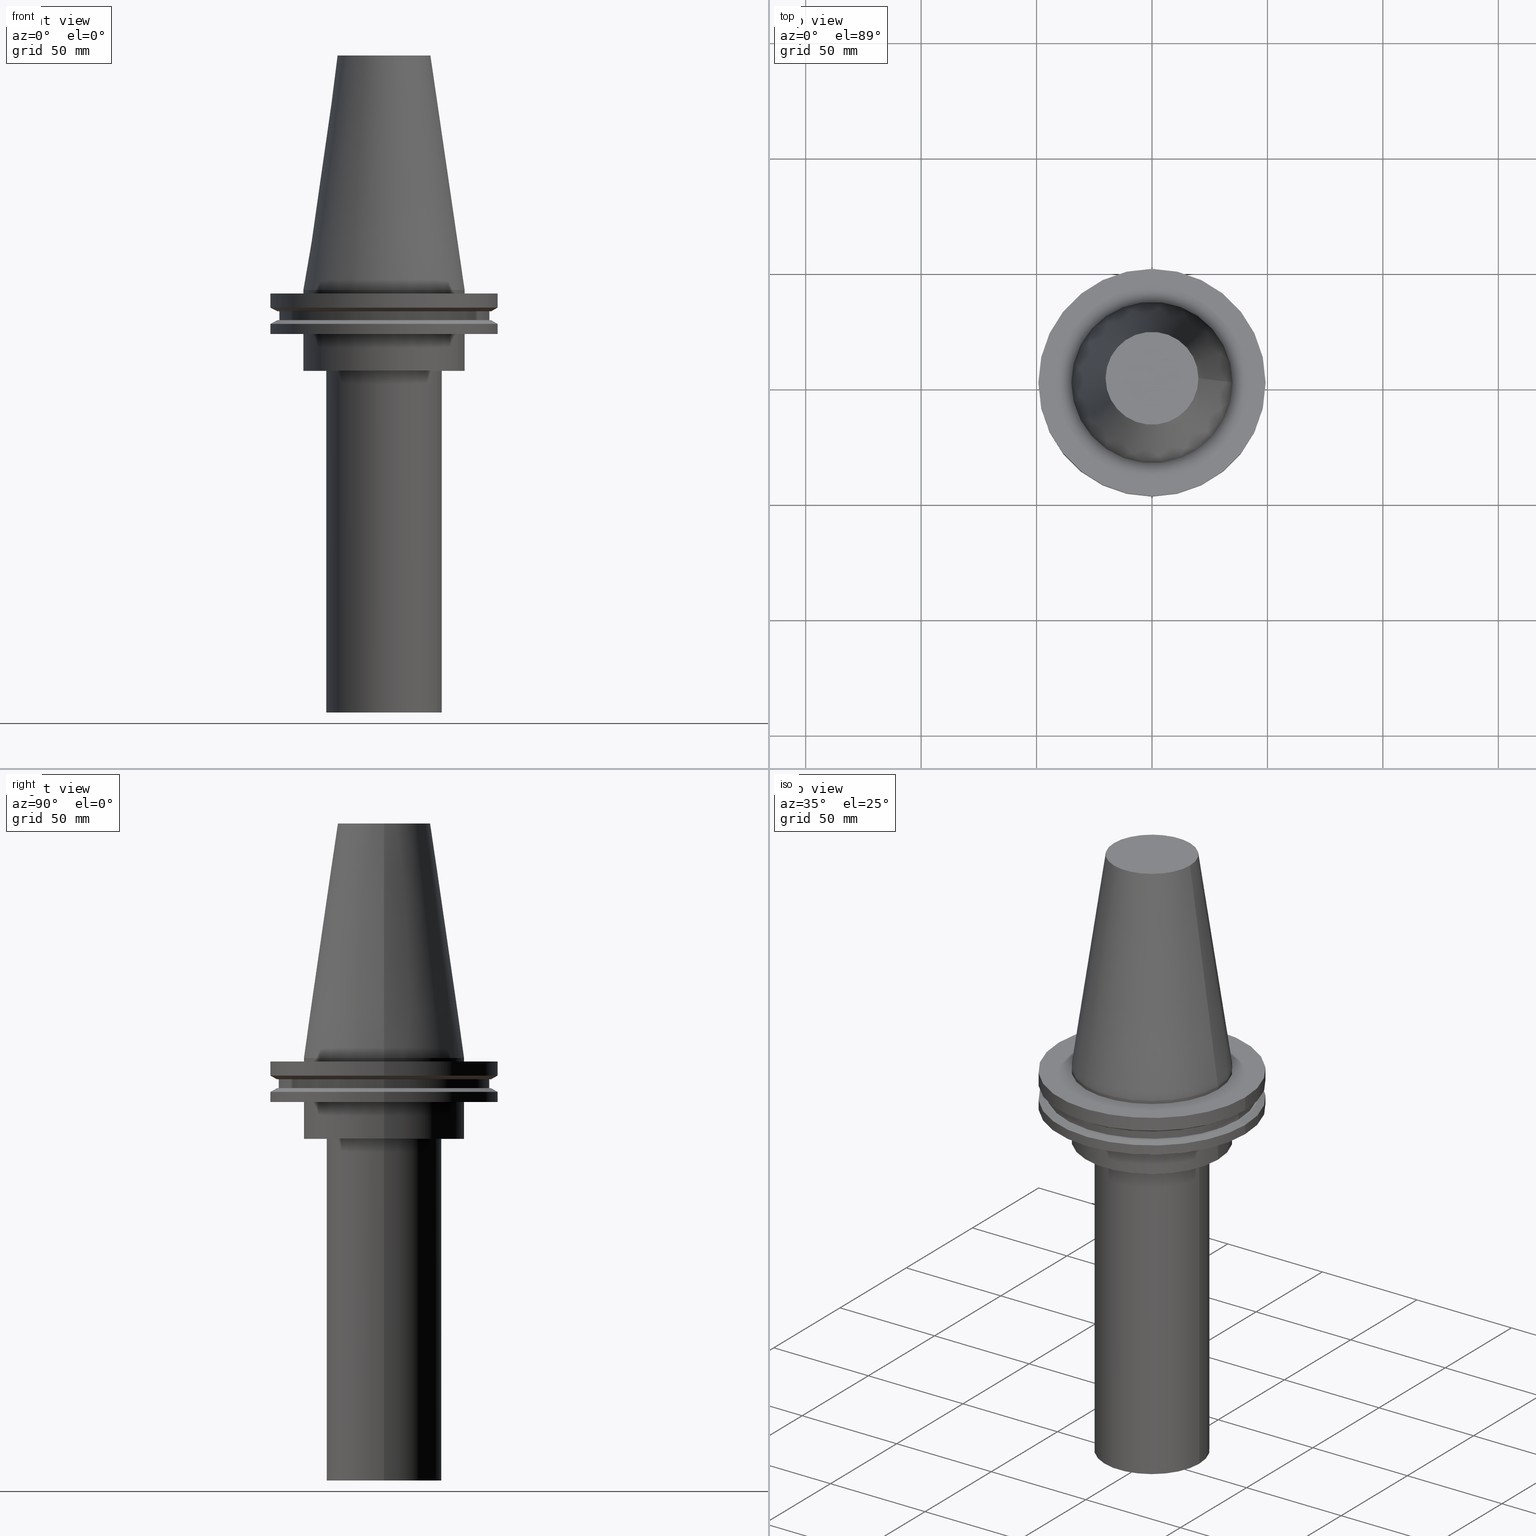
[diagram: canonical four-view strip — front | top / right | iso, engineering-drawing reading convention]
A machine part, canonical four-view strip (front | top / right | iso — engineering-drawing reading convention). The complete STEP part file that produces these views, byte-faithful:
ISO-10303-21;
HEADER;
FILE_DESCRIPTION (( 'STEP AP203' ),
    '1' );
FILE_NAME ('11.368.655.stp',
    '2022-03-09T15:21:19',
    ( '' ),
    ( '' ),
    'SwSTEP 2.0',
    'SolidWorks 2021',
    '' );
FILE_SCHEMA (( 'CONFIG_CONTROL_DESIGN' ));
ENDSEC;

DATA;
#1 = FACE_OUTER_BOUND ( 'NONE', #296, .T. ) ;
#2 = AXIS2_PLACEMENT_3D ( 'NONE', #148, #390, #211 ) ;
#3 = DIRECTION ( 'NONE',  ( 1.000000000000000000, 0.000000000000000000, 0.000000000000000000 ) ) ;
#4 = PRODUCT_DEFINITION ( 'UNKNOWN', '', #6, #273 ) ;
#5 = CARTESIAN_POINT ( 'NONE',  ( 0.000000000000000000, 45.64500000000000313, -13.05499999999999794 ) ) ;
#6 = PRODUCT_DEFINITION_FORMATION_WITH_SPECIFIED_SOURCE ( 'ANY', '', #285, .NOT_KNOWN. ) ;
#7 = FACE_OUTER_BOUND ( 'NONE', #293, .T. ) ;
#8 = ADVANCED_FACE ( 'NONE', ( #258, #80 ), #289, .T. ) ;
#9 = CARTESIAN_POINT ( 'NONE',  ( 0.000000000000000000, 0.000000000000000000, -1.499999999999987566 ) ) ;
#10 = EDGE_LOOP ( 'NONE', ( #106 ) ) ;
#11 = VERTEX_POINT ( 'NONE', #352 ) ;
#12 = ORIENTED_EDGE ( 'NONE', *, *, #157, .T. ) ;
#13 = CIRCLE ( 'NONE', #355, 25.00000000000000000 ) ;
#14 = CC_DESIGN_PERSON_AND_ORGANIZATION_ASSIGNMENT ( #239, #90, ( #6 ) ) ;
#15 = ORIENTED_EDGE ( 'NONE', *, *, #149, .T. ) ;
#16 = ORIENTED_EDGE ( 'NONE', *, *, #276, .F. ) ;
#17 = VERTEX_POINT ( 'NONE', #170 ) ;
#18 = ORIENTED_EDGE ( 'NONE', *, *, #149, .F. ) ;
#19 = AXIS2_PLACEMENT_3D ( 'NONE', #393, #337, #23 ) ;
#20 = CYLINDRICAL_SURFACE ( 'NONE', #31, 49.21499999999999631 ) ;
#21 = DIRECTION ( 'NONE',  ( -0.000000000000000000, -0.000000000000000000, 1.000000000000000000 ) ) ;
#22 = DIRECTION ( 'NONE',  ( 1.000000000000000000, 0.000000000000000000, 0.000000000000000000 ) ) ;
#23 = DIRECTION ( 'NONE',  ( 1.000000000000000000, 0.000000000000000000, 0.000000000000000000 ) ) ;
#24 = CC_DESIGN_PERSON_AND_ORGANIZATION_ASSIGNMENT ( #263, #196, ( #285 ) ) ;
#25 = CALENDAR_DATE ( 2022, 9, 3 ) ;
#26 = DIRECTION ( 'NONE',  ( -0.000000000000000000, -0.000000000000000000, 1.000000000000000000 ) ) ;
#27 = AXIS2_PLACEMENT_3D ( 'NONE', #71, #197, #141 ) ;
#28 = FACE_OUTER_BOUND ( 'NONE', #387, .T. ) ;
#29 = EDGE_CURVE ( 'NONE', #290, #290, #167, .T. ) ;
#30 = PLANE ( 'NONE',  #382 ) ;
#31 = AXIS2_PLACEMENT_3D ( 'NONE', #93, #120, #179 ) ;
#32 = EDGE_LOOP ( 'NONE', ( #16 ) ) ;
#33 = DIRECTION ( 'NONE',  ( -0.000000000000000000, -0.000000000000000000, 1.000000000000000000 ) ) ;
#34 = CARTESIAN_POINT ( 'NONE',  ( 49.21500000000000341, 0.000000000000000000, -7.602389855251287187 ) ) ;
#35 = CARTESIAN_POINT ( 'NONE',  ( 0.000000000000000000, 46.43919780457007818, -9.204999999999998295 ) ) ;
#36 = ORIENTED_EDGE ( 'NONE', *, *, #157, .F. ) ;
#37 = CIRCLE ( 'NONE', #140, 49.21499999999998920 ) ;
#38 = APPROVAL_STATUS ( 'not_yet_approved' ) ;
#39 = CARTESIAN_POINT ( 'NONE',  ( 20.10819343178871321, 0.000000000000000000, 101.5999999999999801 ) ) ;
#40 = EDGE_LOOP ( 'NONE', ( #324 ) ) ;
#41 = LOCAL_TIME ( 9, 21, 19.00000000000000000, #201 ) ;
#42 = VERTEX_POINT ( 'NONE', #236 ) ;
#43 = CARTESIAN_POINT ( 'NONE',  ( 49.21499999999998920, 0.000000000000000000, -14.65761014474876944 ) ) ;
#44 = DIRECTION ( 'NONE',  ( -1.000000000000000000, 0.000000000000000000, 0.000000000000000000 ) ) ;
#45 = VERTEX_POINT ( 'NONE', #43 ) ;
#46 = DIRECTION ( 'NONE',  ( -0.000000000000000000, -0.000000000000000000, 1.000000000000000000 ) ) ;
#47 = MANIFOLD_SOLID_BREP ( 'CKB', #161 ) ;
#48 = EDGE_CURVE ( 'NONE', #340, #340, #177, .T. ) ;
#49 = CC_DESIGN_APPROVAL ( #200, ( #6 ) ) ;
#50 = APPROVAL_STATUS ( 'not_yet_approved' ) ;
#51 = DIRECTION ( 'NONE',  ( -0.000000000000000000, -0.000000000000000000, 1.000000000000000000 ) ) ;
#52 = AXIS2_PLACEMENT_3D ( 'NONE', #35, #347, #376 ) ;
#53 = APPROVAL_ROLE ( '' ) ;
#54 = DIRECTION ( 'NONE',  ( 1.000000000000000000, 0.000000000000000000, 0.000000000000000000 ) ) ;
#55 = APPROVAL_DATE_TIME ( #306, #200 ) ;
#56 = CARTESIAN_POINT ( 'NONE',  ( 0.000000000000000000, 0.000000000000000000, 101.5999999999999943 ) ) ;
#57 = APPROVAL_PERSON_ORGANIZATION ( #155, #223, #53 ) ;
#58 = ADVANCED_FACE ( 'NONE', ( #117, #331 ), #277, .T. ) ;
#59 = FACE_OUTER_BOUND ( 'NONE', #238, .T. ) ;
#60 = DIRECTION ( 'NONE',  ( 1.000000000000000000, 0.000000000000000000, 0.000000000000000000 ) ) ;
#61 = CARTESIAN_POINT ( 'NONE',  ( 0.000000000000000000, 0.000000000000000000, -35.00000000000000000 ) ) ;
#62 = ADVANCED_FACE ( 'NONE', ( #303, #88 ), #20, .T. ) ;
#63 = CONICAL_SURFACE ( 'NONE', #379, 49.21499999999998920, 1.047197551196554333 ) ;
#64 = DIRECTION ( 'NONE',  ( 0.000000000000000000, -0.000000000000000000, 1.000000000000000000 ) ) ;
#65 = CARTESIAN_POINT ( 'NONE',  ( 0.000000000000000000, 20.10819343178871321, 101.5999999999999943 ) ) ;
#66 = AXIS2_PLACEMENT_3D ( 'NONE', #338, #333, #60 ) ;
#67 = DIRECTION ( 'NONE',  ( -0.000000000000000000, -0.000000000000000000, 1.000000000000000000 ) ) ;
#68 = FACE_OUTER_BOUND ( 'NONE', #384, .T. ) ;
#69 = APPROVAL_PERSON_ORGANIZATION ( #204, #200, #85 ) ;
#70 = ORIENTED_EDGE ( 'NONE', *, *, #276, .T. ) ;
#71 = CARTESIAN_POINT ( 'NONE',  ( 0.000000000000000000, 0.000000000000000000, 0.000000000000000000 ) ) ;
#72 = CIRCLE ( 'NONE', #334, 34.92499999999999005 ) ;
#73 =( NAMED_UNIT ( * ) SI_UNIT ( $, .STERADIAN. ) SOLID_ANGLE_UNIT ( ) );
#74 = EDGE_LOOP ( 'NONE', ( #144 ) ) ;
#75 = EDGE_CURVE ( 'NONE', #265, #265, #281, .T. ) ;
#76 = PERSON_AND_ORGANIZATION_ROLE ( 'creator' ) ;
#77 = ORIENTED_EDGE ( 'NONE', *, *, #48, .T. ) ;
#78 =( GEOMETRIC_REPRESENTATION_CONTEXT ( 3 ) GLOBAL_UNCERTAINTY_ASSIGNED_CONTEXT ( ( #342 ) ) GLOBAL_UNIT_ASSIGNED_CONTEXT ( ( #259, #350, #73 ) ) REPRESENTATION_CONTEXT ( 'NONE', 'WORKASPACE' ) );
#79 = COORDINATED_UNIVERSAL_TIME_OFFSET ( 6, 0, .BEHIND. ) ;
#80 = FACE_OUTER_BOUND ( 'NONE', #383, .T. ) ;
#81 = AXIS2_PLACEMENT_3D ( 'NONE', #240, #369, #95 ) ;
#82 = APPROVAL_DATE_TIME ( #226, #113 ) ;
#83 = ORIENTED_EDGE ( 'NONE', *, *, #194, .F. ) ;
#84 = EDGE_LOOP ( 'NONE', ( #18 ) ) ;
#85 = APPROVAL_ROLE ( '' ) ;
#86 = DIRECTION ( 'NONE',  ( -0.000000000000000000, -0.000000000000000000, 1.000000000000000000 ) ) ;
#87 = AXIS2_PLACEMENT_3D ( 'NONE', #362, #305, #391 ) ;
#88 = FACE_OUTER_BOUND ( 'NONE', #40, .T. ) ;
#89 = EDGE_CURVE ( 'NONE', #11, #11, #13, .T. ) ;
#90 = PERSON_AND_ORGANIZATION_ROLE ( 'design_supplier' ) ;
#91 = DIRECTION ( 'NONE',  ( 1.000000000000000000, 0.000000000000000000, 0.000000000000000000 ) ) ;
#92 = CC_DESIGN_SECURITY_CLASSIFICATION ( #367, ( #6 ) ) ;
#93 = CARTESIAN_POINT ( 'NONE',  ( 0.000000000000000000, 0.000000000000000000, 101.5999999999999943 ) ) ;
#94 = AXIS2_PLACEMENT_3D ( 'NONE', #245, #86, #368 ) ;
#95 = DIRECTION ( 'NONE',  ( 1.000000000000000000, 0.000000000000000000, 0.000000000000000000 ) ) ;
#96 = CARTESIAN_POINT ( 'NONE',  ( 0.000000000000000000, 0.000000000000000000, -35.00000000000000000 ) ) ;
#97 = PRODUCT_DEFINITION_SHAPE ( 'NONE', 'NONE',  #4 ) ;
#98 = CC_DESIGN_APPROVAL ( #113, ( #4 ) ) ;
#99 = DIRECTION ( 'NONE',  ( 0.000000000000000000, 0.000000000000000000, -1.000000000000000000 ) ) ;
#100 = CARTESIAN_POINT ( 'NONE',  ( 0.000000000000000000, 0.000000000000000000, -1.499999999999987566 ) ) ;
#101 = ADVANCED_FACE ( 'NONE', ( #300, #246 ), #151, .T. ) ;
#102 = DIRECTION ( 'NONE',  ( -0.000000000000000000, -0.000000000000000000, 1.000000000000000000 ) ) ;
#103 = CARTESIAN_POINT ( 'NONE',  ( 0.000000000000000000, 0.000000000000000000, -13.05499999999999794 ) ) ;
#104 = CALENDAR_DATE ( 2022, 9, 3 ) ;
#105 = ADVANCED_FACE ( 'NONE', ( #119, #181 ), #187, .F. ) ;
#106 = ORIENTED_EDGE ( 'NONE', *, *, #297, .F. ) ;
#107 = AXIS2_PLACEMENT_3D ( 'NONE', #242, #244, #22 ) ;
#108 = CARTESIAN_POINT ( 'NONE',  ( 49.21499999999999631, 0.000000000000000000, -1.499999999999987566 ) ) ;
#109 = ORIENTED_EDGE ( 'NONE', *, *, #218, .T. ) ;
#110 = CARTESIAN_POINT ( 'NONE',  ( 25.00000000000000000, 0.000000000000000000, -183.0000000000000000 ) ) ;
#111 = ORIENTED_EDGE ( 'NONE', *, *, #308, .T. ) ;
#112 = LOCAL_TIME ( 9, 21, 19.00000000000000000, #178 ) ;
#113 = APPROVAL ( #38, 'UNSPECIFIED' ) ;
#114 = EDGE_LOOP ( 'NONE', ( #12 ) ) ;
#115 = AXIS2_PLACEMENT_3D ( 'NONE', #329, #46, #270 ) ;
#116 = MECHANICAL_CONTEXT ( 'NONE', #231, 'mechanical' ) ;
#117 = FACE_OUTER_BOUND ( 'NONE', #133, .T. ) ;
#118 = FACE_BOUND ( 'NONE', #32, .T. ) ;
#119 = FACE_BOUND ( 'NONE', #142, .T. ) ;
#120 = DIRECTION ( 'NONE',  ( -0.000000000000000000, -0.000000000000000000, 1.000000000000000000 ) ) ;
#121 = DATE_TIME_ROLE ( 'creation_date' ) ;
#122 = DIRECTION ( 'NONE',  ( 0.000000000000000000, 0.000000000000000000, -1.000000000000000000 ) ) ;
#123 = EDGE_CURVE ( 'NONE', #298, #298, #227, .T. ) ;
#124 = CALENDAR_DATE ( 2022, 9, 3 ) ;
#125 = DIRECTION ( 'NONE',  ( -1.000000000000000000, 0.000000000000000000, -0.000000000000000000 ) ) ;
#126 = AXIS2_PLACEMENT_3D ( 'NONE', #163, #254, #370 ) ;
#127 = PLANE ( 'NONE',  #136 ) ;
#128 = DIRECTION ( 'NONE',  ( -0.000000000000000000, -0.000000000000000000, 1.000000000000000000 ) ) ;
#129 = CYLINDRICAL_SURFACE ( 'NONE', #294, 34.92499999999999005 ) ;
#130 = DIRECTION ( 'NONE',  ( 1.000000000000000000, 0.000000000000000000, 0.000000000000000000 ) ) ;
#131 = CIRCLE ( 'NONE', #87, 34.92499999999999005 ) ;
#132 = DIRECTION ( 'NONE',  ( -1.000000000000000000, 0.000000000000000000, -0.000000000000000000 ) ) ;
#133 = EDGE_LOOP ( 'NONE', ( #83 ) ) ;
#134 = CC_DESIGN_DATE_AND_TIME_ASSIGNMENT ( #182, #302, ( #367 ) ) ;
#135 = PERSON_AND_ORGANIZATION ( #150, #286 ) ;
#136 = AXIS2_PLACEMENT_3D ( 'NONE', #220, #64, #165 ) ;
#137 = EDGE_LOOP ( 'NONE', ( #205 ) ) ;
#138 = CARTESIAN_POINT ( 'NONE',  ( 34.92499999999999005, 0.000000000000000000, -1.499999999999987566 ) ) ;
#139 = ORIENTED_EDGE ( 'NONE', *, *, #123, .T. ) ;
#140 = AXIS2_PLACEMENT_3D ( 'NONE', #389, #364, #366 ) ;
#141 = DIRECTION ( 'NONE',  ( 1.000000000000000000, 0.000000000000000000, 0.000000000000000000 ) ) ;
#142 = EDGE_LOOP ( 'NONE', ( #217 ) ) ;
#143 = VERTEX_POINT ( 'NONE', #39 ) ;
#144 = ORIENTED_EDGE ( 'NONE', *, *, #354, .F. ) ;
#145 = CARTESIAN_POINT ( 'NONE',  ( 34.92499999999999716, 0.000000000000000000, -19.04999999999999716 ) ) ;
#146 = ORIENTED_EDGE ( 'NONE', *, *, #218, .F. ) ;
#147 = AXIS2_PLACEMENT_3D ( 'NONE', #65, #188, #132 ) ;
#148 = CARTESIAN_POINT ( 'NONE',  ( 0.000000000000000000, 0.000000000000000000, 101.5999999999999943 ) ) ;
#149 = EDGE_CURVE ( 'NONE', #321, #321, #131, .T. ) ;
#150 = PERSON ( 'UNSPECIFIED', 'UNSPECIFIED', 'UNSPECIFIED', ('UNSPECIFIED'), ('UNSPECIFIED'), ('UNSPECIFIED') ) ;
#151 = CYLINDRICAL_SURFACE ( 'NONE', #2, 34.92499999999999716 ) ;
#152 = LOCAL_TIME ( 9, 21, 19.00000000000000000, #206 ) ;
#153 = CALENDAR_DATE ( 2022, 9, 3 ) ;
#154 = CARTESIAN_POINT ( 'NONE',  ( 0.000000000000000000, 0.000000000000000000, -19.04999999999999716 ) ) ;
#155 = PERSON_AND_ORGANIZATION ( #150, #286 ) ;
#156 = PLANE ( 'NONE',  #190 ) ;
#157 = EDGE_CURVE ( 'NONE', #42, #42, #37, .T. ) ;
#158 = DIRECTION ( 'NONE',  ( 0.000000000000000000, -0.000000000000000000, 1.000000000000000000 ) ) ;
#159 = AXIS2_PLACEMENT_3D ( 'NONE', #160, #189, #251 ) ;
#160 = CARTESIAN_POINT ( 'NONE',  ( 0.000000000000000000, 0.000000000000000000, -9.204999999999991189 ) ) ;
#161 = CLOSED_SHELL ( 'NONE', ( #8, #268, #105, #101, #363, #58, #388, #288, #252, #320, #326, #62, #184, #291, #377, #173 ) ) ;
#162 = FACE_OUTER_BOUND ( 'NONE', #267, .T. ) ;
#163 = CARTESIAN_POINT ( 'NONE',  ( 0.000000000000000000, 0.000000000000000000, -9.204999999999991189 ) ) ;
#164 = EDGE_CURVE ( 'NONE', #380, #380, #365, .T. ) ;
#165 = DIRECTION ( 'NONE',  ( 1.000000000000000000, 0.000000000000000000, 0.000000000000000000 ) ) ;
#166 = FACE_BOUND ( 'NONE', #264, .T. ) ;
#167 = CIRCLE ( 'NONE', #313, 49.21500000000000341 ) ;
#168 = CARTESIAN_POINT ( 'NONE',  ( 34.92499999999999716, 0.000000000000000000, -35.00000000000000000 ) ) ;
#169 = ORIENTED_EDGE ( 'NONE', *, *, #123, .F. ) ;
#170 = CARTESIAN_POINT ( 'NONE',  ( 46.43919780457007818, 0.000000000000000000, -9.204999999999991189 ) ) ;
#171 = ORIENTED_EDGE ( 'NONE', *, *, #164, .F. ) ;
#172 = VERTEX_POINT ( 'NONE', #108 ) ;
#173 = ADVANCED_FACE ( 'NONE', ( #59 ), #395, .F. ) ;
#174 = DIRECTION ( 'NONE',  ( 0.000000000000000000, 0.000000000000000000, -1.000000000000000000 ) ) ;
#175 = CONICAL_SURFACE ( 'NONE', #159, 46.43919780457007818, 1.047197551196575205 ) ;
#176 = EDGE_LOOP ( 'NONE', ( #169 ) ) ;
#177 = CIRCLE ( 'NONE', #115, 45.64500000000000313 ) ;
#178 = COORDINATED_UNIVERSAL_TIME_OFFSET ( 6, 0, .BEHIND. ) ;
#179 = DIRECTION ( 'NONE',  ( 1.000000000000000000, 0.000000000000000000, 0.000000000000000000 ) ) ;
#180 = PERSON_AND_ORGANIZATION_ROLE ( 'classification_officer' ) ;
#181 = FACE_OUTER_BOUND ( 'NONE', #74, .T. ) ;
#182 = DATE_AND_TIME ( #25, #152 ) ;
#183 = FACE_OUTER_BOUND ( 'NONE', #322, .T. ) ;
#184 = ADVANCED_FACE ( 'NONE', ( #118, #183 ), #156, .F. ) ;
#185 = CIRCLE ( 'NONE', #235, 49.21499999999999631 ) ;
#186 = DATE_AND_TIME ( #328, #41 ) ;
#187 = PLANE ( 'NONE',  #107 ) ;
#188 = DIRECTION ( 'NONE',  ( 0.000000000000000000, 0.000000000000000000, -1.000000000000000000 ) ) ;
#189 = DIRECTION ( 'NONE',  ( -0.000000000000000000, -0.000000000000000000, 1.000000000000000000 ) ) ;
#190 = AXIS2_PLACEMENT_3D ( 'NONE', #213, #122, #125 ) ;
#191 = DIRECTION ( 'NONE',  ( 0.000000000000000000, 0.000000000000000000, -1.000000000000000000 ) ) ;
#192 = FACE_OUTER_BOUND ( 'NONE', #195, .T. ) ;
#193 = PLANE ( 'NONE',  #147 ) ;
#194 = EDGE_CURVE ( 'NONE', #45, #45, #247, .T. ) ;
#195 = EDGE_LOOP ( 'NONE', ( #234 ) ) ;
#196 = PERSON_AND_ORGANIZATION_ROLE ( 'design_owner' ) ;
#197 = DIRECTION ( 'NONE',  ( 0.000000000000000000, 0.000000000000000000, 1.000000000000000000 ) ) ;
#198 = DIRECTION ( 'NONE',  ( 1.000000000000000000, 0.000000000000000000, 0.000000000000000000 ) ) ;
#199 = EDGE_LOOP ( 'NONE', ( #111 ) ) ;
#200 = APPROVAL ( #332, 'UNSPECIFIED' ) ;
#201 = COORDINATED_UNIVERSAL_TIME_OFFSET ( 6, 0, .BEHIND. ) ;
#202 = CARTESIAN_POINT ( 'NONE',  ( 0.000000000000000000, 0.000000000000000000, 0.000000000000000000 ) ) ;
#203 = ORIENTED_EDGE ( 'NONE', *, *, #194, .T. ) ;
#204 = PERSON_AND_ORGANIZATION ( #150, #286 ) ;
#205 = ORIENTED_EDGE ( 'NONE', *, *, #344, .F. ) ;
#206 = COORDINATED_UNIVERSAL_TIME_OFFSET ( 6, 0, .BEHIND. ) ;
#207 = DIRECTION ( 'NONE',  ( 1.000000000000000000, 0.000000000000000000, 0.000000000000000000 ) ) ;
#208 = AXIS2_PLACEMENT_3D ( 'NONE', #154, #275, #207 ) ;
#209 = DIRECTION ( 'NONE',  ( 1.000000000000000000, 0.000000000000000000, 0.000000000000000000 ) ) ;
#210 = SECURITY_CLASSIFICATION_LEVEL ( 'unclassified' ) ;
#211 = DIRECTION ( 'NONE',  ( 1.000000000000000000, 0.000000000000000000, 0.000000000000000000 ) ) ;
#212 = AXIS2_PLACEMENT_3D ( 'NONE', #314, #248, #3 ) ;
#213 = CARTESIAN_POINT ( 'NONE',  ( 0.000000000000000000, 49.21499999999999631, -1.499999999999992895 ) ) ;
#214 = AXIS2_PLACEMENT_3D ( 'NONE', #202, #174, #44 ) ;
#215 = CARTESIAN_POINT ( 'NONE',  ( 0.000000000000000000, 25.00000000000000000, -183.0000000000000000 ) ) ;
#216 = DIRECTION ( 'NONE',  ( -1.000000000000000000, 0.000000000000000000, 0.000000000000000000 ) ) ;
#217 = ORIENTED_EDGE ( 'NONE', *, *, #89, .T. ) ;
#218 = EDGE_CURVE ( 'NONE', #143, #143, #243, .T. ) ;
#219 = LOCAL_TIME ( 9, 21, 19.00000000000000000, #79 ) ;
#220 = CARTESIAN_POINT ( 'NONE',  ( 0.000000000000000000, 49.21499999999998920, -19.04999999999999716 ) ) ;
#221 = CARTESIAN_POINT ( 'NONE',  ( 0.000000000000000000, 0.000000000000000000, 101.5999999999999943 ) ) ;
#222 = EDGE_LOOP ( 'NONE', ( #262 ) ) ;
#223 = APPROVAL ( #50, 'UNSPECIFIED' ) ;
#224 = CYLINDRICAL_SURFACE ( 'NONE', #212, 25.00000000000000000 ) ;
#225 = FACE_OUTER_BOUND ( 'NONE', #84, .T. ) ;
#226 = DATE_AND_TIME ( #104, #219 ) ;
#227 = CIRCLE ( 'NONE', #208, 34.92499999999999716 ) ;
#228 = EDGE_LOOP ( 'NONE', ( #232 ) ) ;
#229 = ORIENTED_EDGE ( 'NONE', *, *, #354, .T. ) ;
#230 = LOCAL_TIME ( 9, 21, 19.00000000000000000, #394 ) ;
#231 = APPLICATION_CONTEXT ( 'configuration controlled 3d designs of mechanical parts and assemblies' ) ;
#232 = ORIENTED_EDGE ( 'NONE', *, *, #48, .F. ) ;
#233 = CARTESIAN_POINT ( 'NONE',  ( 45.64500000000000313, 0.000000000000000000, -13.05499999999999794 ) ) ;
#234 = ORIENTED_EDGE ( 'NONE', *, *, #308, .F. ) ;
#235 = AXIS2_PLACEMENT_3D ( 'NONE', #100, #378, #130 ) ;
#236 = CARTESIAN_POINT ( 'NONE',  ( 49.21499999999998920, 0.000000000000000000, -19.04999999999999716 ) ) ;
#237 = CC_DESIGN_PERSON_AND_ORGANIZATION_ASSIGNMENT ( #292, #76, ( #4 ) ) ;
#238 = EDGE_LOOP ( 'NONE', ( #171 ) ) ;
#239 = PERSON_AND_ORGANIZATION ( #150, #286 ) ;
#240 = CARTESIAN_POINT ( 'NONE',  ( 0.000000000000000000, 0.000000000000000000, 101.5999999999999943 ) ) ;
#241 = AXIS2_PLACEMENT_3D ( 'NONE', #96, #67, #280 ) ;
#242 = CARTESIAN_POINT ( 'NONE',  ( 0.000000000000000000, 34.92499999999999716, -35.00000000000000000 ) ) ;
#243 = CIRCLE ( 'NONE', #66, 20.10819343178871321 ) ;
#244 = DIRECTION ( 'NONE',  ( 0.000000000000000000, -0.000000000000000000, 1.000000000000000000 ) ) ;
#245 = CARTESIAN_POINT ( 'NONE',  ( 0.000000000000000000, 0.000000000000000000, -14.65761014474876944 ) ) ;
#246 = FACE_OUTER_BOUND ( 'NONE', #371, .T. ) ;
#247 = CIRCLE ( 'NONE', #94, 49.21499999999998920 ) ;
#248 = DIRECTION ( 'NONE',  ( -0.000000000000000000, -0.000000000000000000, 1.000000000000000000 ) ) ;
#249 = CC_DESIGN_PERSON_AND_ORGANIZATION_ASSIGNMENT ( #392, #361, ( #6 ) ) ;
#250 = PLANE ( 'NONE',  #52 ) ;
#251 = DIRECTION ( 'NONE',  ( 1.000000000000000000, 0.000000000000000000, 0.000000000000000000 ) ) ;
#252 = ADVANCED_FACE ( 'NONE', ( #307, #278 ), #339, .T. ) ;
#253 = AXIS2_PLACEMENT_3D ( 'NONE', #336, #26, #54 ) ;
#254 = DIRECTION ( 'NONE',  ( -0.000000000000000000, -0.000000000000000000, 1.000000000000000000 ) ) ;
#255 = DIRECTION ( 'NONE',  ( 1.000000000000000000, 0.000000000000000000, 0.000000000000000000 ) ) ;
#256 = EDGE_LOOP ( 'NONE', ( #36 ) ) ;
#257 = APPLICATION_PROTOCOL_DEFINITION ( 'international standard', 'config_control_design', 1994, #315 ) ;
#258 = FACE_BOUND ( 'NONE', #312, .T. ) ;
#259 =( LENGTH_UNIT ( ) NAMED_UNIT ( * ) SI_UNIT ( .MILLI., .METRE. ) );
#260 = AXIS2_PLACEMENT_3D ( 'NONE', #56, #304, #209 ) ;
#261 = PRODUCT_RELATED_PRODUCT_CATEGORY ( 'detail', '', ( #285 ) ) ;
#262 = ORIENTED_EDGE ( 'NONE', *, *, #344, .T. ) ;
#263 = PERSON_AND_ORGANIZATION ( #150, #286 ) ;
#264 = EDGE_LOOP ( 'NONE', ( #77 ) ) ;
#265 = VERTEX_POINT ( 'NONE', #323 ) ;
#266 = CC_DESIGN_APPROVAL ( #223, ( #367 ) ) ;
#267 = EDGE_LOOP ( 'NONE', ( #351 ) ) ;
#268 = ADVANCED_FACE ( 'NONE', ( #68 ), #193, .F. ) ;
#269 = VERTEX_POINT ( 'NONE', #233 ) ;
#270 = DIRECTION ( 'NONE',  ( 1.000000000000000000, 0.000000000000000000, 0.000000000000000000 ) ) ;
#271 = AXIS2_PLACEMENT_3D ( 'NONE', #215, #158, #272 ) ;
#272 = DIRECTION ( 'NONE',  ( 1.000000000000000000, 0.000000000000000000, 0.000000000000000000 ) ) ;
#273 = DESIGN_CONTEXT ( 'detailed design', #315, 'design' ) ;
#274 = PERSON_AND_ORGANIZATION ( #150, #286 ) ;
#275 = DIRECTION ( 'NONE',  ( -0.000000000000000000, -0.000000000000000000, 1.000000000000000000 ) ) ;
#276 = EDGE_CURVE ( 'NONE', #348, #348, #72, .T. ) ;
#277 = CYLINDRICAL_SURFACE ( 'NONE', #260, 49.21499999999998920 ) ;
#278 = FACE_OUTER_BOUND ( 'NONE', #222, .T. ) ;
#279 = CIRCLE ( 'NONE', #310, 45.64500000000000313 ) ;
#280 = DIRECTION ( 'NONE',  ( 1.000000000000000000, 0.000000000000000000, 0.000000000000000000 ) ) ;
#281 = CIRCLE ( 'NONE', #253, 46.43919780457007818 ) ;
#282 = FACE_OUTER_BOUND ( 'NONE', #327, .T. ) ;
#283 = ORIENTED_EDGE ( 'NONE', *, *, #297, .T. ) ;
#284 = FACE_OUTER_BOUND ( 'NONE', #349, .T. ) ;
#285 = PRODUCT ( '11.368.655', '11.368.655', '', ( #116 ) ) ;
#286 = ORGANIZATION ( 'UNSPECIFIED', 'UNSPECIFIED', '' ) ;
#287 = FACE_OUTER_BOUND ( 'NONE', #256, .T. ) ;
#288 = ADVANCED_FACE ( 'NONE', ( #375, #162 ), #30, .F. ) ;
#289 = CONICAL_SURFACE ( 'NONE', #214, 34.92499999999999005, 0.1448138465474119452 ) ;
#290 = VERTEX_POINT ( 'NONE', #34 ) ;
#291 = ADVANCED_FACE ( 'NONE', ( #225, #28 ), #129, .T. ) ;
#292 = PERSON_AND_ORGANIZATION ( #150, #286 ) ;
#293 = EDGE_LOOP ( 'NONE', ( #203 ) ) ;
#294 = AXIS2_PLACEMENT_3D ( 'NONE', #221, #33, #309 ) ;
#295 = ORIENTED_EDGE ( 'NONE', *, *, #164, .T. ) ;
#296 = EDGE_LOOP ( 'NONE', ( #295 ) ) ;
#297 = EDGE_CURVE ( 'NONE', #172, #172, #185, .T. ) ;
#298 = VERTEX_POINT ( 'NONE', #145 ) ;
#299 = APPROVAL_DATE_TIME ( #358, #223 ) ;
#300 = FACE_OUTER_BOUND ( 'NONE', #176, .T. ) ;
#301 = CIRCLE ( 'NONE', #126, 46.43919780457007818 ) ;
#302 = DATE_TIME_ROLE ( 'classification_date' ) ;
#303 = FACE_OUTER_BOUND ( 'NONE', #10, .T. ) ;
#304 = DIRECTION ( 'NONE',  ( -0.000000000000000000, -0.000000000000000000, 1.000000000000000000 ) ) ;
#305 = DIRECTION ( 'NONE',  ( -0.000000000000000000, -0.000000000000000000, 1.000000000000000000 ) ) ;
#306 = DATE_AND_TIME ( #124, #230 ) ;
#307 = FACE_OUTER_BOUND ( 'NONE', #228, .T. ) ;
#308 = EDGE_CURVE ( 'NONE', #17, #17, #301, .T. ) ;
#309 = DIRECTION ( 'NONE',  ( 1.000000000000000000, 0.000000000000000000, 0.000000000000000000 ) ) ;
#310 = AXIS2_PLACEMENT_3D ( 'NONE', #103, #102, #311 ) ;
#311 = DIRECTION ( 'NONE',  ( 1.000000000000000000, 0.000000000000000000, 0.000000000000000000 ) ) ;
#312 = EDGE_LOOP ( 'NONE', ( #146 ) ) ;
#313 = AXIS2_PLACEMENT_3D ( 'NONE', #386, #51, #198 ) ;
#314 = CARTESIAN_POINT ( 'NONE',  ( 0.000000000000000000, 0.000000000000000000, 0.000000000000000000 ) ) ;
#315 = APPLICATION_CONTEXT ( 'configuration controlled 3d designs of mechanical parts and assemblies' ) ;
#316 = FACE_BOUND ( 'NONE', #353, .T. ) ;
#317 = APPROVAL_PERSON_ORGANIZATION ( #135, #113, #356 ) ;
#318 = DIRECTION ( 'NONE',  ( -1.000000000000000000, 0.000000000000000000, -0.000000000000000000 ) ) ;
#319 = VERTEX_POINT ( 'NONE', #168 ) ;
#320 = ADVANCED_FACE ( 'NONE', ( #192, #166 ), #250, .F. ) ;
#321 = VERTEX_POINT ( 'NONE', #325 ) ;
#322 = EDGE_LOOP ( 'NONE', ( #283 ) ) ;
#323 = CARTESIAN_POINT ( 'NONE',  ( 46.43919780457007818, 0.000000000000000000, -13.05499999999999794 ) ) ;
#324 = ORIENTED_EDGE ( 'NONE', *, *, #29, .T. ) ;
#325 = CARTESIAN_POINT ( 'NONE',  ( 34.92499999999999005, 0.000000000000000000, 0.000000000000000000 ) ) ;
#326 = ADVANCED_FACE ( 'NONE', ( #284, #345 ), #175, .T. ) ;
#327 = EDGE_LOOP ( 'NONE', ( #381 ) ) ;
#328 = CALENDAR_DATE ( 2022, 9, 3 ) ;
#329 = CARTESIAN_POINT ( 'NONE',  ( 0.000000000000000000, 0.000000000000000000, -9.204999999999991189 ) ) ;
#330 = SHAPE_DEFINITION_REPRESENTATION ( #97, #373 ) ;
#331 = FACE_OUTER_BOUND ( 'NONE', #114, .T. ) ;
#332 = APPROVAL_STATUS ( 'not_yet_approved' ) ;
#333 = DIRECTION ( 'NONE',  ( -0.000000000000000000, -0.000000000000000000, 1.000000000000000000 ) ) ;
#334 = AXIS2_PLACEMENT_3D ( 'NONE', #9, #128, #255 ) ;
#335 = CC_DESIGN_PERSON_AND_ORGANIZATION_ASSIGNMENT ( #274, #180, ( #367 ) ) ;
#336 = CARTESIAN_POINT ( 'NONE',  ( 0.000000000000000000, 0.000000000000000000, -13.05499999999999794 ) ) ;
#337 = DIRECTION ( 'NONE',  ( -0.000000000000000000, -0.000000000000000000, 1.000000000000000000 ) ) ;
#338 = CARTESIAN_POINT ( 'NONE',  ( 0.000000000000000000, 0.000000000000000000, 101.5999999999999801 ) ) ;
#339 = CYLINDRICAL_SURFACE ( 'NONE', #81, 45.64500000000000313 ) ;
#340 = VERTEX_POINT ( 'NONE', #343 ) ;
#341 = EDGE_LOOP ( 'NONE', ( #357 ) ) ;
#342 = UNCERTAINTY_MEASURE_WITH_UNIT (LENGTH_MEASURE( 1.000000000000000082E-05 ), #259, 'distance_accuracy_value', 'NONE');
#343 = CARTESIAN_POINT ( 'NONE',  ( 45.64500000000000313, 0.000000000000000000, -9.204999999999991189 ) ) ;
#344 = EDGE_CURVE ( 'NONE', #269, #269, #279, .T. ) ;
#345 = FACE_BOUND ( 'NONE', #199, .T. ) ;
#346 = CARTESIAN_POINT ( 'NONE',  ( 0.000000000000000000, 0.000000000000000000, -14.65761014474876944 ) ) ;
#347 = DIRECTION ( 'NONE',  ( 0.000000000000000000, -0.000000000000000000, 1.000000000000000000 ) ) ;
#348 = VERTEX_POINT ( 'NONE', #138 ) ;
#349 = EDGE_LOOP ( 'NONE', ( #359 ) ) ;
#350 =( NAMED_UNIT ( * ) PLANE_ANGLE_UNIT ( ) SI_UNIT ( $, .RADIAN. ) );
#351 = ORIENTED_EDGE ( 'NONE', *, *, #75, .T. ) ;
#352 = CARTESIAN_POINT ( 'NONE',  ( 25.00000000000000000, 0.000000000000000000, -35.00000000000000000 ) ) ;
#353 = EDGE_LOOP ( 'NONE', ( #139 ) ) ;
#354 = EDGE_CURVE ( 'NONE', #319, #319, #360, .T. ) ;
#355 = AXIS2_PLACEMENT_3D ( 'NONE', #61, #21, #91 ) ;
#356 = APPROVAL_ROLE ( '' ) ;
#357 = ORIENTED_EDGE ( 'NONE', *, *, #75, .F. ) ;
#358 = DATE_AND_TIME ( #153, #112 ) ;
#359 = ORIENTED_EDGE ( 'NONE', *, *, #29, .F. ) ;
#360 = CIRCLE ( 'NONE', #241, 34.92499999999999716 ) ;
#361 = PERSON_AND_ORGANIZATION_ROLE ( 'creator' ) ;
#362 = CARTESIAN_POINT ( 'NONE',  ( 0.000000000000000000, 0.000000000000000000, 0.000000000000000000 ) ) ;
#363 = ADVANCED_FACE ( 'NONE', ( #287, #316 ), #127, .F. ) ;
#364 = DIRECTION ( 'NONE',  ( -0.000000000000000000, -0.000000000000000000, 1.000000000000000000 ) ) ;
#365 = CIRCLE ( 'NONE', #19, 25.00000000000000000 ) ;
#366 = DIRECTION ( 'NONE',  ( 1.000000000000000000, 0.000000000000000000, 0.000000000000000000 ) ) ;
#367 = SECURITY_CLASSIFICATION ( '', '', #210 ) ;
#368 = DIRECTION ( 'NONE',  ( 1.000000000000000000, 0.000000000000000000, 0.000000000000000000 ) ) ;
#369 = DIRECTION ( 'NONE',  ( -0.000000000000000000, -0.000000000000000000, 1.000000000000000000 ) ) ;
#370 = DIRECTION ( 'NONE',  ( 1.000000000000000000, 0.000000000000000000, 0.000000000000000000 ) ) ;
#371 = EDGE_LOOP ( 'NONE', ( #229 ) ) ;
#372 = FACE_BOUND ( 'NONE', #341, .T. ) ;
#373 = ADVANCED_BREP_SHAPE_REPRESENTATION ( '11.368.655', ( #47, #27 ), #78 ) ;
#374 = CC_DESIGN_DATE_AND_TIME_ASSIGNMENT ( #186, #121, ( #4 ) ) ;
#375 = FACE_BOUND ( 'NONE', #137, .T. ) ;
#376 = DIRECTION ( 'NONE',  ( 1.000000000000000000, 0.000000000000000000, 0.000000000000000000 ) ) ;
#377 = ADVANCED_FACE ( 'NONE', ( #282, #1 ), #224, .T. ) ;
#378 = DIRECTION ( 'NONE',  ( -0.000000000000000000, -0.000000000000000000, 1.000000000000000000 ) ) ;
#379 = AXIS2_PLACEMENT_3D ( 'NONE', #346, #99, #216 ) ;
#380 = VERTEX_POINT ( 'NONE', #110 ) ;
#381 = ORIENTED_EDGE ( 'NONE', *, *, #89, .F. ) ;
#382 = AXIS2_PLACEMENT_3D ( 'NONE', #5, #191, #318 ) ;
#383 = EDGE_LOOP ( 'NONE', ( #15 ) ) ;
#384 = EDGE_LOOP ( 'NONE', ( #109 ) ) ;
#385 = APPLICATION_PROTOCOL_DEFINITION ( 'international standard', 'config_control_design', 1994, #231 ) ;
#386 = CARTESIAN_POINT ( 'NONE',  ( 0.000000000000000000, 0.000000000000000000, -7.602389855251287187 ) ) ;
#387 = EDGE_LOOP ( 'NONE', ( #70 ) ) ;
#388 = ADVANCED_FACE ( 'NONE', ( #372, #7 ), #63, .T. ) ;
#389 = CARTESIAN_POINT ( 'NONE',  ( 0.000000000000000000, 0.000000000000000000, -19.04999999999999716 ) ) ;
#390 = DIRECTION ( 'NONE',  ( -0.000000000000000000, -0.000000000000000000, 1.000000000000000000 ) ) ;
#391 = DIRECTION ( 'NONE',  ( 1.000000000000000000, 0.000000000000000000, 0.000000000000000000 ) ) ;
#392 = PERSON_AND_ORGANIZATION ( #150, #286 ) ;
#393 = CARTESIAN_POINT ( 'NONE',  ( 0.000000000000000000, 0.000000000000000000, -183.0000000000000000 ) ) ;
#394 = COORDINATED_UNIVERSAL_TIME_OFFSET ( 6, 0, .BEHIND. ) ;
#395 = PLANE ( 'NONE',  #271 ) ;
ENDSEC;
END-ISO-10303-21;
